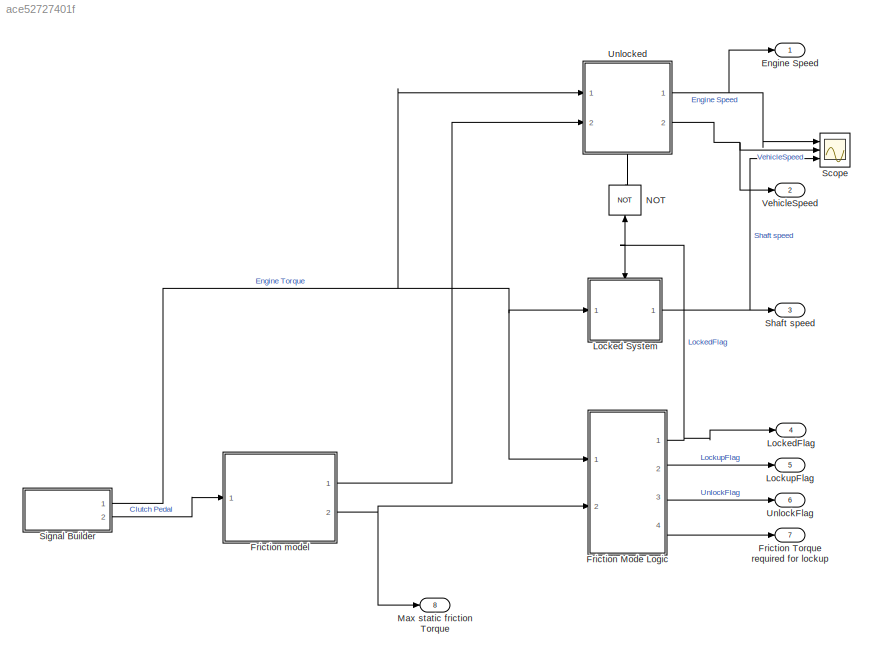
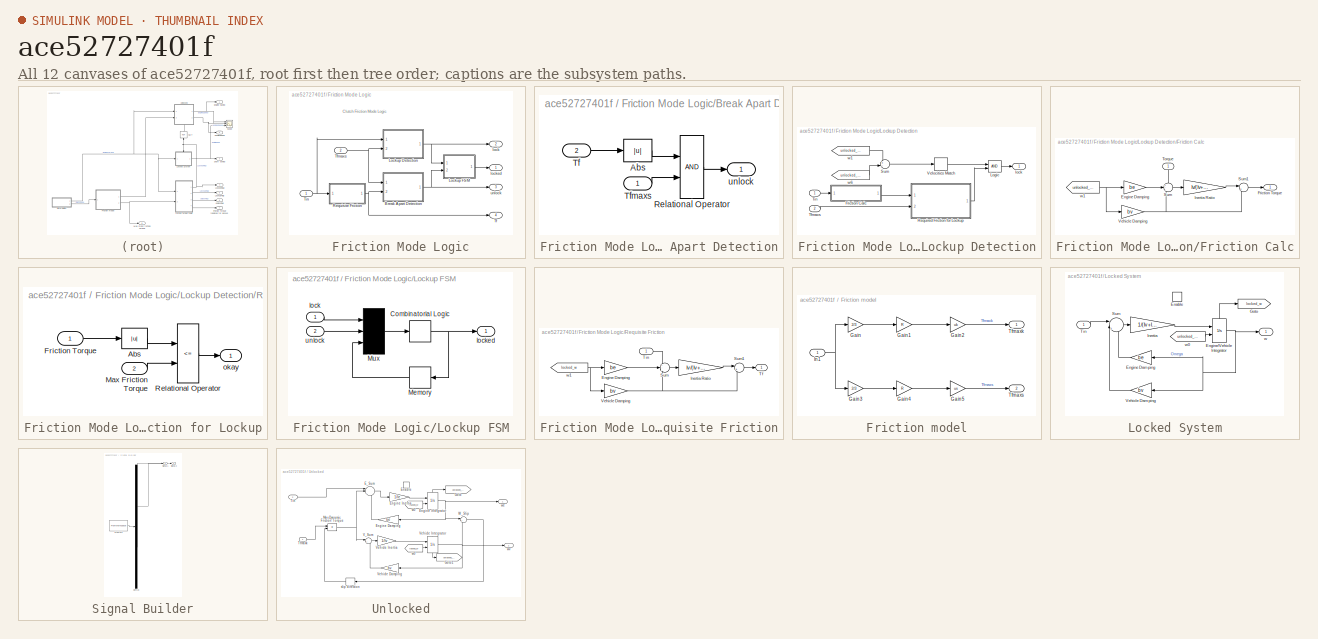
[diagram: thumbnail index - all 12 canvases of the model, root first then tree order]
MODEL slx_ace52727401f
KIND model
CONFIG AbsTol = auto
CONFIG EnableMultiTasking = off
CONFIG FixedStep = auto
CONFIG MaxStep = auto
CONFIG MinStep = auto
CONFIG PreLoadFcn = Ie = 1;\nIv = 5;\nbe = 2;\nbv = 1;\nuk = 1;\nus = 1.5;\nR = 1;
CONFIG RelTol = 1e-3
CONFIG SampleTimeConstraint = Unconstrained
CONFIG Solver = VariableStepAuto
CONFIG SolverName = VariableStepAuto
CONFIG StartTime = 0.0
CONFIG StopTime = 10.0
BLOCK [Outport] Engine Speed
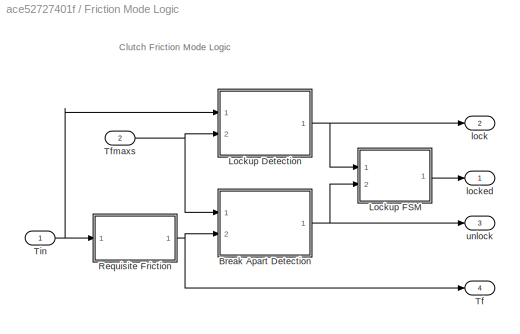
BLOCK [SubSystem] Friction Mode Logic
  Ports = [2, 4]
  RequestExecContextInheritance = off
BLOCK [SubSystem] Friction Mode Logic/Break Apart Detection
  Ports = [2, 1]
  RequestExecContextInheritance = off
BLOCK [Abs] Friction Mode Logic/Break Apart Detection/Abs
BLOCK [RelationalOperator] Friction Mode Logic/Break Apart Detection/Relational Operator
  OutDataTypeStr = boolean
  Ports = [2, 1]
BLOCK [Inport] Friction Mode Logic/Break Apart Detection/Tf
  Port = 2
BLOCK [Inport] Friction Mode Logic/Break Apart Detection/Tfmaxs
BLOCK [Outport] Friction Mode Logic/Break Apart Detection/unlock
  InitialOutput = 0
  VectorParamsAs1DForOutWhenUnconnected = off
BLOCK [SubSystem] Friction Mode Logic/Lockup Detection
  Ports = [2, 1]
  RequestExecContextInheritance = off
BLOCK [SubSystem] Friction Mode Logic/Lockup Detection/Friction Calc
  Ports = [1, 1]
  RequestExecContextInheritance = off
BLOCK [Gain] Friction Mode Logic/Lockup Detection/Friction Calc/Engine Damping
  Gain = be
  NameLocation = top
  OutDataTypeStr = Inherit: Same as input
  ParamDataTypeStr = Inherit: Same as input
  SaturateOnIntegerOverflow = on
BLOCK [Outport] Friction Mode Logic/Lockup Detection/Friction Calc/Friction Torque
  InitialOutput = 0
  VectorParamsAs1DForOutWhenUnconnected = off
BLOCK [Gain] Friction Mode Logic/Lockup Detection/Friction Calc/Inertia Ratio
  Gain = Iv/(Iv+Ie)
  OutDataTypeStr = Inherit: Same as input
  ParamDataTypeStr = Inherit: Same as input
  SaturateOnIntegerOverflow = on
BLOCK [Sum] Friction Mode Logic/Lockup Detection/Friction Calc/Sum
  InputSameDT = on
  Inputs = +--
  OutDataTypeStr = Inherit: Same as first input
  Ports = [3, 1]
  SaturateOnIntegerOverflow = on
BLOCK [Sum] Friction Mode Logic/Lockup Detection/Friction Calc/Sum1
  InputSameDT = on
  Inputs = |++
  OutDataTypeStr = Inherit: Same as first input
  Ports = [2, 1]
  SaturateOnIntegerOverflow = on
BLOCK [Inport] Friction Mode Logic/Lockup Detection/Friction Calc/Torque
  NameLocation = left
BLOCK [Gain] Friction Mode Logic/Lockup Detection/Friction Calc/Vehicle Damping
  Gain = bv
  OutDataTypeStr = Inherit: Same as input
  ParamDataTypeStr = Inherit: Same as input
  SaturateOnIntegerOverflow = on
BLOCK [From] Friction Mode Logic/Lockup Detection/Friction Calc/w1
  GotoTag = unlocked_we
  TagVisibility = global
BLOCK [Logic] Friction Mode Logic/Lockup Detection/Logic
  AttributesFormatString = (%<Operator>)
  IconShape = distinctive
  OutDataTypeStr = boolean
  Ports = [2, 1]
BLOCK [SubSystem] Friction Mode Logic/Lockup Detection/Required Friction for Lockup
  Ports = [2, 1]
  RequestExecContextInheritance = off
BLOCK [Abs] Friction Mode Logic/Lockup Detection/Required Friction for Lockup/Abs
BLOCK [Inport] Friction Mode Logic/Lockup Detection/Required Friction for Lockup/Friction Torque
BLOCK [Inport] Friction Mode Logic/Lockup Detection/Required Friction for Lockup/Max Friction Torque
  Port = 2
BLOCK [RelationalOperator] Friction Mode Logic/Lockup Detection/Required Friction for Lockup/Relational Operator
  Operator = <=
  OutDataTypeStr = boolean
  Ports = [2, 1]
BLOCK [Outport] Friction Mode Logic/Lockup Detection/Required Friction for Lockup/okay
  InitialOutput = 0
  VectorParamsAs1DForOutWhenUnconnected = off
BLOCK [Sum] Friction Mode Logic/Lockup Detection/Sum
  InputSameDT = on
  Inputs = +-
  OutDataTypeStr = Inherit: Same as first input
  Ports = [2, 1]
  SaturateOnIntegerOverflow = on
BLOCK [Inport] Friction Mode Logic/Lockup Detection/Tfmaxs
  Port = 2
BLOCK [Inport] Friction Mode Logic/Lockup Detection/Tin
BLOCK [HitCross] Friction Mode Logic/Lockup Detection/Velocities Match
  Ports = [1, 1]
BLOCK [Outport] Friction Mode Logic/Lockup Detection/lock
  InitialOutput = 0
  VectorParamsAs1DForOutWhenUnconnected = off
BLOCK [From] Friction Mode Logic/Lockup Detection/w1
  GotoTag = unlocked_we
  TagVisibility = global
BLOCK [From] Friction Mode Logic/Lockup Detection/w6
  GotoTag = unlocked_wv
  TagVisibility = global
BLOCK [SubSystem] Friction Mode Logic/Lockup FSM
  Ports = [2, 1]
  RequestExecContextInheritance = off
BLOCK [CombinatorialLogic] Friction Mode Logic/Lockup FSM/Combinatorial Logic
  TruthTable = [0;1;0;0;1;1;1;0]
BLOCK [Memory] Friction Mode Logic/Lockup FSM/Memory
BLOCK [Mux] Friction Mode Logic/Lockup FSM/Mux
  Inputs = 3
  Ports = [3, 1]
BLOCK [Inport] Friction Mode Logic/Lockup FSM/lock
  NameLocation = top
BLOCK [Outport] Friction Mode Logic/Lockup FSM/locked
  InitialOutput = 0
  VectorParamsAs1DForOutWhenUnconnected = off
BLOCK [Inport] Friction Mode Logic/Lockup FSM/unlock
  Port = 2
BLOCK [SubSystem] Friction Mode Logic/Requisite Friction
  Ports = [1, 1]
  RequestExecContextInheritance = off
BLOCK [Gain] Friction Mode Logic/Requisite Friction/Engine Damping
  Gain = be
  NameLocation = top
  OutDataTypeStr = Inherit: Same as input
  ParamDataTypeStr = Inherit: Same as input
  SaturateOnIntegerOverflow = on
BLOCK [Gain] Friction Mode Logic/Requisite Friction/Inertia Ratio
  Gain = Iv/(Iv+Ie)
  OutDataTypeStr = Inherit: Same as input
  ParamDataTypeStr = Inherit: Same as input
  SaturateOnIntegerOverflow = on
BLOCK [Sum] Friction Mode Logic/Requisite Friction/Sum
  InputSameDT = on
  Inputs = +--
  OutDataTypeStr = Inherit: Same as first input
  Ports = [3, 1]
  SaturateOnIntegerOverflow = on
BLOCK [Sum] Friction Mode Logic/Requisite Friction/Sum1
  InputSameDT = on
  Inputs = |++
  OutDataTypeStr = Inherit: Same as first input
  Ports = [2, 1]
  SaturateOnIntegerOverflow = on
BLOCK [Outport] Friction Mode Logic/Requisite Friction/Tf
  InitialOutput = 0
  VectorParamsAs1DForOutWhenUnconnected = off
BLOCK [Inport] Friction Mode Logic/Requisite Friction/Tin
BLOCK [Gain] Friction Mode Logic/Requisite Friction/Vehicle Damping
  Gain = bv
  OutDataTypeStr = Inherit: Same as input
  ParamDataTypeStr = Inherit: Same as input
  SaturateOnIntegerOverflow = on
BLOCK [From] Friction Mode Logic/Requisite Friction/w1
  GotoTag = locked_w
  NameLocation = top
  TagVisibility = global
BLOCK [Outport] Friction Mode Logic/Tf
  InitialOutput = 0
  Port = 4
  VectorParamsAs1DForOutWhenUnconnected = off
BLOCK [Inport] Friction Mode Logic/Tfmaxs
  Port = 2
BLOCK [Inport] Friction Mode Logic/Tin
BLOCK [Outport] Friction Mode Logic/lock
  InitialOutput = 0
  Port = 2
  VectorParamsAs1DForOutWhenUnconnected = off
BLOCK [Outport] Friction Mode Logic/locked
  InitialOutput = 0
  VectorParamsAs1DForOutWhenUnconnected = off
BLOCK [Outport] Friction Mode Logic/unlock
  InitialOutput = 0
  Port = 3
  VectorParamsAs1DForOutWhenUnconnected = off
BLOCK [Outport] Friction Torque required for lockup
  Port = 7
BLOCK [SubSystem] Friction model
  Ports = [1, 2]
  RequestExecContextInheritance = off
BLOCK [Gain] Friction model/Gain
  Gain = 2/3
BLOCK [Gain] Friction model/Gain1
  Gain = R
BLOCK [Gain] Friction model/Gain2
  Gain = uk
BLOCK [Gain] Friction model/Gain3
  Gain = 2/3
BLOCK [Gain] Friction model/Gain4
  Gain = R
BLOCK [Gain] Friction model/Gain5
  Gain = us
BLOCK [Inport] Friction model/In1
BLOCK [Outport] Friction model/Tfmaxk
BLOCK [Outport] Friction model/Tfmaxs
  Port = 2
BLOCK [SubSystem] Locked System
  Ports = [1, 1, 1]
  RequestExecContextInheritance = off
BLOCK [EnablePort] Locked System/Enable
  Ports = []
  StatesWhenEnabling = reset
BLOCK [Gain] Locked System/Engine Damping
  Gain = be
  OutDataTypeStr = Inherit: Same as input
  ParamDataTypeStr = Inherit: Same as input
  SaturateOnIntegerOverflow = on
BLOCK [Integrator] Locked System/Engine//Vehicle Integrator
  InitialConditionSource = external
  Ports = [2, 1, 0, 0, 1]
  ShowStatePort = on
BLOCK [Goto] Locked System/Goto
  GotoTag = locked_w
  NameLocation = top
  TagVisibility = global
BLOCK [Gain] Locked System/Inertia
  Gain = 1/(Iv+Ie)
  OutDataTypeStr = Inherit: Same as input
  ParamDataTypeStr = Inherit: Same as input
  SaturateOnIntegerOverflow = on
BLOCK [Sum] Locked System/Sum
  InputSameDT = on
  Inputs = ||+--
  OutDataTypeStr = Inherit: Same as first input
  Ports = [3, 1]
  SaturateOnIntegerOverflow = on
BLOCK [Inport] Locked System/Tin
BLOCK [Gain] Locked System/Vehicle Damping
  Gain = bv
  OutDataTypeStr = Inherit: Same as input
  ParamDataTypeStr = Inherit: Same as input
  SaturateOnIntegerOverflow = on
BLOCK [Outport] Locked System/w
  InitialOutput = 0
  VectorParamsAs1DForOutWhenUnconnected = off
BLOCK [From] Locked System/w0
  GotoTag = unlocked_we
  TagVisibility = global
BLOCK [Outport] LockedFlag
  Port = 4
BLOCK [Outport] LockupFlag
  Port = 5
BLOCK [Outport] Max static friction Torque
  Port = 8
BLOCK [Logic] NOT
  AllPortsSameDT = off
  IconShape = distinctive
  NameLocation = right
  Operator = NOT
  OutDataTypeStr = boolean
  Ports = [1, 1]
BLOCK [Scope] Scope
  Floating = off
  NumInputPorts = 3
  Ports = [3]
  ScopeSpecificationString = Simulink.scopes.TimeScopeBlockCfg('CurrentConfiguration', extmgr.ConfigurationSet(extmgr.Configuration('Core','General UI',true),extmgr.Configuration('Core','Source UI',true),extmgr.Configuration('Sources','WiredSimulink',true),extmgr.Configuration('Visuals','Time Domain',true,'SerializedDisplays',{struct('MinYLimReal','-0.40039','MaxYLimReal','0.40045','YLabelReal','','MinYLimMag','0.00000','MaxY...<+2721ch>
BLOCK [Outport] Shaft speed
  Port = 3
BLOCK [SubSystem] Signal Builder
  ClipboardFcn = sigbuilder_block('clipboard');
  CloseFcn = sigbuilder_block('close');
  ContinueFcn = sigbuilder_block('continue');
  CopyFcn = sigbuilder_block('copy');
  DeleteFcn = sigbuilder_block('delete');
  LoadFcn = sigbuilder_block('load');
  MaskHideContents = on
  ModelCloseFcn = sigbuilder_block('modelClose');
  NameChangeFcn = sigbuilder_block('namechange');
  OpenFcn = sigbuilder_block('open',[88.5 252 550.5 399.75 ]);
  PauseFcn = sigbuilder_block('pause');
  Ports = [0, 2]
  PreSaveFcn = sigbuilder_block('preSave');
  RequestExecContextInheritance = off
  StartFcn = sigbuilder_block('start');
  StopFcn = sigbuilder_block('stop');
  Tag = STV Subsys
BLOCK [Demux] Signal Builder/Demux
  DisplayOption = none
  Outputs = 2
  Ports = [1, 2]
  Tag = STV Demux
BLOCK [FromWorkspace] Signal Builder/FromWs
  Tag = STV FromWs
  VariableName = tuvar
BLOCK [Outport] Signal Builder/Signal 1
  Tag = STV Outport
BLOCK [Outport] Signal Builder/Signal 2
  Port = 2
  Tag = STV Outport
BLOCK [Outport] UnlockFlag
  Port = 6
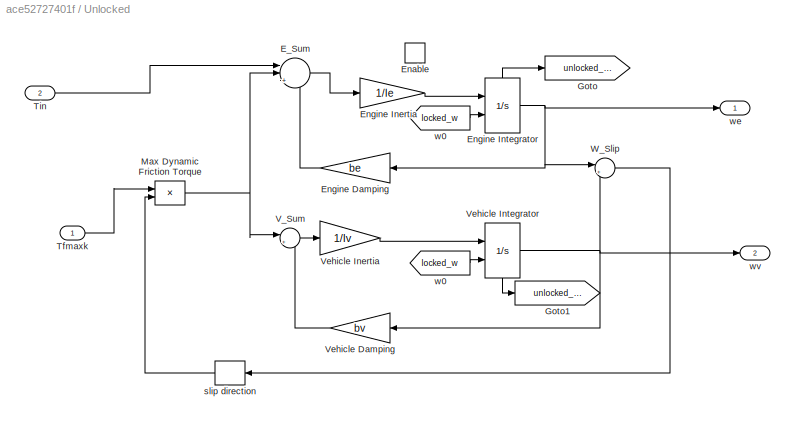
BLOCK [SubSystem] Unlocked
  NameLocation = top
  Ports = [2, 2, 1]
  RequestExecContextInheritance = off
BLOCK [Sum] Unlocked/E_Sum
  InputSameDT = on
  Inputs = ||+--
  NameLocation = top
  OutDataTypeStr = Inherit: Same as first input
  Ports = [3, 1]
  SaturateOnIntegerOverflow = on
BLOCK [EnablePort] Unlocked/Enable
  Ports = []
  StatesWhenEnabling = reset
BLOCK [Gain] Unlocked/Engine Damping
  Gain = be
  OutDataTypeStr = Inherit: Same as input
  ParamDataTypeStr = Inherit: Same as input
  SaturateOnIntegerOverflow = on
BLOCK [Gain] Unlocked/Engine Inertia
  Gain = 1/Ie
  OutDataTypeStr = Inherit: Same as input
  ParamDataTypeStr = Inherit: Same as input
  SaturateOnIntegerOverflow = on
BLOCK [Integrator] Unlocked/Engine Integrator
  InitialConditionSource = external
  Ports = [2, 1, 0, 0, 1]
  ShowStatePort = on
BLOCK [Goto] Unlocked/Goto
  GotoTag = unlocked_we
  TagVisibility = global
BLOCK [Goto] Unlocked/Goto1
  GotoTag = unlocked_wv
  TagVisibility = global
BLOCK [Product] Unlocked/Max Dynamic Friction Torque
  InputSameDT = on
  OutDataTypeStr = Inherit: Same as first input
  Ports = [2, 1]
  RndMeth = Zero
  SaturateOnIntegerOverflow = on
BLOCK [Inport] Unlocked/Tfmaxk
BLOCK [Inport] Unlocked/Tin
  Port = 2
BLOCK [Sum] Unlocked/V_Sum
  InputSameDT = on
  Inputs = |+-
  NameLocation = top
  OutDataTypeStr = Inherit: Same as first input
  Ports = [2, 1]
  SaturateOnIntegerOverflow = on
BLOCK [Gain] Unlocked/Vehicle Damping
  Gain = bv
  OutDataTypeStr = Inherit: Same as input
  ParamDataTypeStr = Inherit: Same as input
  SaturateOnIntegerOverflow = on
BLOCK [Gain] Unlocked/Vehicle Inertia
  Gain = 1/Iv
  OutDataTypeStr = Inherit: Same as input
  ParamDataTypeStr = Inherit: Same as input
  SaturateOnIntegerOverflow = on
BLOCK [Integrator] Unlocked/Vehicle Integrator
  InitialConditionSource = external
  NameLocation = top
  Ports = [2, 1, 0, 0, 1]
  ShowStatePort = on
BLOCK [Sum] Unlocked/W_Slip
  InputSameDT = on
  Inputs = |+-
  NameLocation = top
  OutDataTypeStr = Inherit: Same as first input
  Ports = [2, 1]
  SaturateOnIntegerOverflow = on
BLOCK [Signum] Unlocked/slip direction
BLOCK [From] Unlocked/w0
  GotoTag = locked_w
  TagVisibility = global
BLOCK [From] Unlocked/w0 
  GotoTag = locked_w
  TagVisibility = global
BLOCK [Outport] Unlocked/we
  InitialOutput = 0
  VectorParamsAs1DForOutWhenUnconnected = off
BLOCK [Outport] Unlocked/wv
  InitialOutput = 0
  Port = 2
  VectorParamsAs1DForOutWhenUnconnected = off
BLOCK [Outport] VehicleSpeed
  Port = 2
ANNOTATION Friction Mode Logic: Clutch Friction Mode Logic
LINE Friction Mode Logic/Break Apart Detection/Abs:1 -> Friction Mode Logic/Break Apart Detection/Relational Operator:1
LINE Friction Mode Logic/Break Apart Detection/Relational Operator:1 -> Friction Mode Logic/Break Apart Detection/unlock:1
LINE Friction Mode Logic/Break Apart Detection/Tf:1 -> Friction Mode Logic/Break Apart Detection/Abs:1
LINE Friction Mode Logic/Break Apart Detection/Tfmaxs:1 -> Friction Mode Logic/Break Apart Detection/Relational Operator:2
NET Friction Mode Logic/Break Apart Detection:1 -> Friction Mode Logic/Lockup FSM:2, Friction Mode Logic/unlock:1
LINE Friction Mode Logic/Lockup Detection/Friction Calc/Engine Damping:1 -> Friction Mode Logic/Lockup Detection/Friction Calc/Sum:2
LINE Friction Mode Logic/Lockup Detection/Friction Calc/Inertia Ratio:1 -> Friction Mode Logic/Lockup Detection/Friction Calc/Sum1:1
LINE Friction Mode Logic/Lockup Detection/Friction Calc/Sum1:1 -> Friction Mode Logic/Lockup Detection/Friction Calc/Friction Torque:1
LINE Friction Mode Logic/Lockup Detection/Friction Calc/Sum:1 -> Friction Mode Logic/Lockup Detection/Friction Calc/Inertia Ratio:1
LINE Friction Mode Logic/Lockup Detection/Friction Calc/Torque:1 -> Friction Mode Logic/Lockup Detection/Friction Calc/Sum:1
NET Friction Mode Logic/Lockup Detection/Friction Calc/Vehicle Damping:1 -> Friction Mode Logic/Lockup Detection/Friction Calc/Sum1:2, Friction Mode Logic/Lockup Detection/Friction Calc/Sum:3
NET Friction Mode Logic/Lockup Detection/Friction Calc/w1:1 -> Friction Mode Logic/Lockup Detection/Friction Calc/Engine Damping:1, Friction Mode Logic/Lockup Detection/Friction Calc/Vehicle Damping:1
LINE Friction Mode Logic/Lockup Detection/Friction Calc:1 -> Friction Mode Logic/Lockup Detection/Required Friction for Lockup:1
LINE Friction Mode Logic/Lockup Detection/Logic:1 -> Friction Mode Logic/Lockup Detection/lock:1
LINE Friction Mode Logic/Lockup Detection/Required Friction for Lockup/Abs:1 -> Friction Mode Logic/Lockup Detection/Required Friction for Lockup/Relational Operator:1
LINE Friction Mode Logic/Lockup Detection/Required Friction for Lockup/Friction Torque:1 -> Friction Mode Logic/Lockup Detection/Required Friction for Lockup/Abs:1
LINE Friction Mode Logic/Lockup Detection/Required Friction for Lockup/Max Friction Torque:1 -> Friction Mode Logic/Lockup Detection/Required Friction for Lockup/Relational Operator:2
LINE Friction Mode Logic/Lockup Detection/Required Friction for Lockup/Relational Operator:1 -> Friction Mode Logic/Lockup Detection/Required Friction for Lockup/okay:1
LINE Friction Mode Logic/Lockup Detection/Required Friction for Lockup:1 -> Friction Mode Logic/Lockup Detection/Logic:2
LINE Friction Mode Logic/Lockup Detection/Sum:1 -> Friction Mode Logic/Lockup Detection/Velocities Match:1
LINE Friction Mode Logic/Lockup Detection/Tfmaxs:1 -> Friction Mode Logic/Lockup Detection/Required Friction for Lockup:2
LINE Friction Mode Logic/Lockup Detection/Tin:1 -> Friction Mode Logic/Lockup Detection/Friction Calc:1
LINE Friction Mode Logic/Lockup Detection/Velocities Match:1 -> Friction Mode Logic/Lockup Detection/Logic:1
LINE Friction Mode Logic/Lockup Detection/w1:1 -> Friction Mode Logic/Lockup Detection/Sum:1
LINE Friction Mode Logic/Lockup Detection/w6:1 -> Friction Mode Logic/Lockup Detection/Sum:2
NET Friction Mode Logic/Lockup Detection:1 -> Friction Mode Logic/Lockup FSM:1, Friction Mode Logic/lock:1
NET Friction Mode Logic/Lockup FSM/Combinatorial Logic:1 -> Friction Mode Logic/Lockup FSM/Memory:1, Friction Mode Logic/Lockup FSM/locked:1
LINE Friction Mode Logic/Lockup FSM/Memory:1 -> Friction Mode Logic/Lockup FSM/Mux:3
LINE Friction Mode Logic/Lockup FSM/Mux:1 -> Friction Mode Logic/Lockup FSM/Combinatorial Logic:1
LINE Friction Mode Logic/Lockup FSM/lock:1 -> Friction Mode Logic/Lockup FSM/Mux:1
LINE Friction Mode Logic/Lockup FSM/unlock:1 -> Friction Mode Logic/Lockup FSM/Mux:2
LINE Friction Mode Logic/Lockup FSM:1 -> Friction Mode Logic/locked:1
LINE Friction Mode Logic/Requisite Friction/Engine Damping:1 -> Friction Mode Logic/Requisite Friction/Sum:2
LINE Friction Mode Logic/Requisite Friction/Inertia Ratio:1 -> Friction Mode Logic/Requisite Friction/Sum1:1
LINE Friction Mode Logic/Requisite Friction/Sum1:1 -> Friction Mode Logic/Requisite Friction/Tf:1
LINE Friction Mode Logic/Requisite Friction/Sum:1 -> Friction Mode Logic/Requisite Friction/Inertia Ratio:1
LINE Friction Mode Logic/Requisite Friction/Tin:1 -> Friction Mode Logic/Requisite Friction/Sum:1
NET Friction Mode Logic/Requisite Friction/Vehicle Damping:1 -> Friction Mode Logic/Requisite Friction/Sum1:2, Friction Mode Logic/Requisite Friction/Sum:3
NET Friction Mode Logic/Requisite Friction/w1:1 -> Friction Mode Logic/Requisite Friction/Engine Damping:1, Friction Mode Logic/Requisite Friction/Vehicle Damping:1
NET Friction Mode Logic/Requisite Friction:1 -> Friction Mode Logic/Break Apart Detection:2, Friction Mode Logic/Tf:1
NET Friction Mode Logic/Tfmaxs:1 -> Friction Mode Logic/Break Apart Detection:1, Friction Mode Logic/Lockup Detection:2
NET Friction Mode Logic/Tin:1 -> Friction Mode Logic/Lockup Detection:1, Friction Mode Logic/Requisite Friction:1
NET Friction Mode Logic:1 -> Locked System:enable, LockedFlag:1, NOT:1
LINE Friction Mode Logic:2 -> LockupFlag:1
LINE Friction Mode Logic:3 -> UnlockFlag:1
LINE Friction Mode Logic:4 -> Friction Torque required for lockup:1
LINE Friction model/Gain1:1 -> Friction model/Gain2:1
LINE Friction model/Gain2:1 -> Friction model/Tfmaxk:1
LINE Friction model/Gain3:1 -> Friction model/Gain4:1
LINE Friction model/Gain4:1 -> Friction model/Gain5:1
LINE Friction model/Gain5:1 -> Friction model/Tfmaxs:1
LINE Friction model/Gain:1 -> Friction model/Gain1:1
NET Friction model/In1:1 -> Friction model/Gain3:1, Friction model/Gain:1
LINE Friction model:1 -> Unlocked:2
NET Friction model:2 -> Friction Mode Logic:2, Max static friction Torque:1
LINE Locked System/Engine Damping:1 -> Locked System/Sum:3
NET Locked System/Engine//Vehicle Integrator:1 -> Locked System/Engine Damping:1, Locked System/Vehicle Damping:1, Locked System/w:1
LINE Locked System/Engine//Vehicle Integrator:state -> Locked System/Goto:1
LINE Locked System/Inertia:1 -> Locked System/Engine//Vehicle Integrator:1
LINE Locked System/Sum:1 -> Locked System/Inertia:1
LINE Locked System/Tin:1 -> Locked System/Sum:1
LINE Locked System/Vehicle Damping:1 -> Locked System/Sum:2
LINE Locked System/w0:1 -> Locked System/Engine//Vehicle Integrator:2
NET Locked System:1 -> Scope:3, Shaft speed:1
LINE NOT:1 -> Unlocked:enable
NET Signal Builder:1 -> Friction Mode Logic:1, Locked System:1, Unlocked:1
LINE Signal Builder:2 -> Friction model:1
LINE Unlocked/E_Sum:1 -> Unlocked/Engine Inertia:1
LINE Unlocked/Engine Damping:1 -> Unlocked/E_Sum:3
LINE Unlocked/Engine Inertia:1 -> Unlocked/Engine Integrator:1
NET Unlocked/Engine Integrator:1 -> Unlocked/Engine Damping:1, Unlocked/W_Slip:1, Unlocked/we:1
LINE Unlocked/Engine Integrator:state -> Unlocked/Goto:1
NET Unlocked/Max Dynamic Friction Torque:1 -> Unlocked/E_Sum:2, Unlocked/V_Sum:1
LINE Unlocked/Tfmaxk:1 -> Unlocked/Max Dynamic Friction Torque:1
LINE Unlocked/Tin:1 -> Unlocked/E_Sum:1
LINE Unlocked/V_Sum:1 -> Unlocked/Vehicle Inertia:1
LINE Unlocked/Vehicle Damping:1 -> Unlocked/V_Sum:2
LINE Unlocked/Vehicle Inertia:1 -> Unlocked/Vehicle Integrator:1
NET Unlocked/Vehicle Integrator:1 -> Unlocked/Vehicle Damping:1, Unlocked/W_Slip:2, Unlocked/wv:1
LINE Unlocked/Vehicle Integrator:state -> Unlocked/Goto1:1
LINE Unlocked/W_Slip:1 -> Unlocked/slip direction:1
LINE Unlocked/slip direction:1 -> Unlocked/Max Dynamic Friction Torque:2
LINE Unlocked/w0 :1 -> Unlocked/Engine Integrator:2
LINE Unlocked/w0:1 -> Unlocked/Vehicle Integrator:2
NET Unlocked:1 -> Engine Speed:1, Scope:1
NET Unlocked:2 -> Scope:2, VehicleSpeed:1
note: NET lines group one-source signal fan-out (src -> all destinations, sorted); 1:1 wires keep LINE
